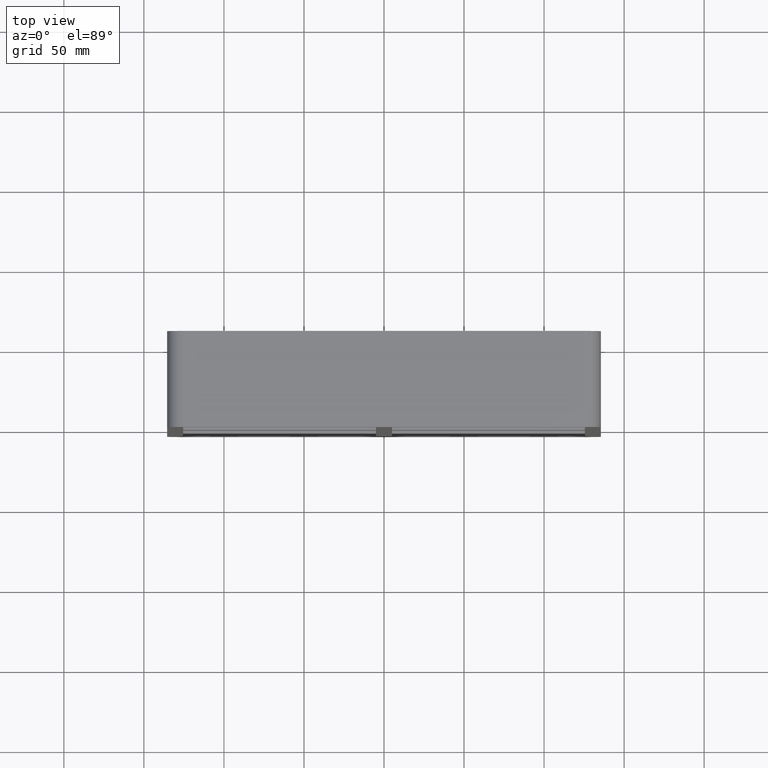
[diagram: clean part render]
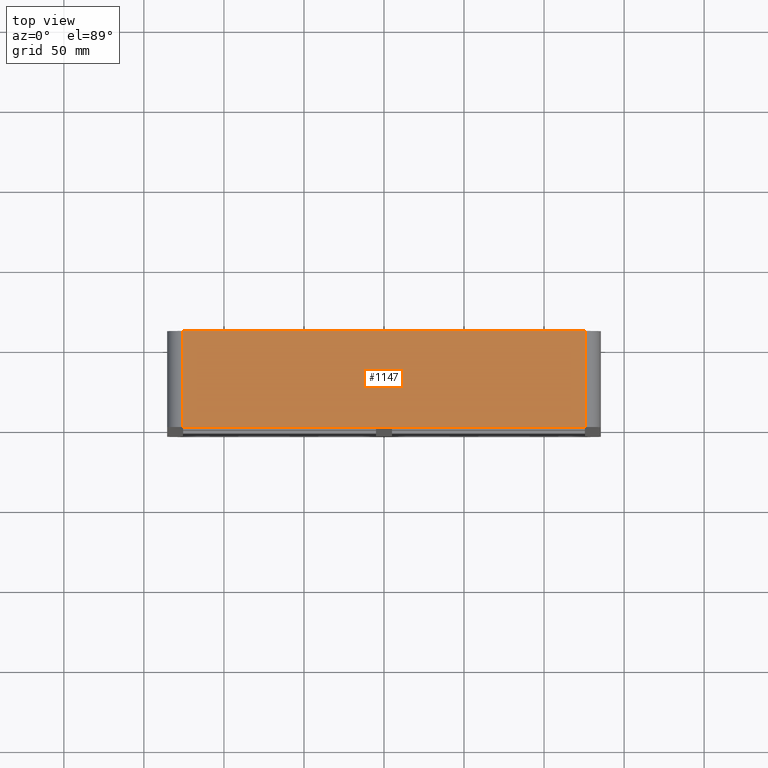
[diagram: same view with one face highlighted and labeled with its STEP entity id]
A machine part, top view. The second image highlights one B-rep face of the part: STEP entity #1147.
In plain terms, the highlighted planar face has unit normal (0, 0, 1).
Its self-contained STEP definition (entity closure, byte-faithful):
#650=CARTESIAN_POINT('',(-125.49999999999997,57.0,181.50000000000003));
#651=VERTEX_POINT('',#650);
#659=CARTESIAN_POINT('',(125.50000000000004,57.0,181.50000000000003));
#660=VERTEX_POINT('',#659);
#661=CARTESIAN_POINT('',(-125.49999999999997,57.0,181.50000000000003));
#662=DIRECTION('',(1.0,0.0,0.0));
#663=VECTOR('',#662,251.0);
#664=LINE('',#661,#663);
#665=EDGE_CURVE('',#651,#660,#664,.T.);
#953=CARTESIAN_POINT('',(125.50000000000004,-3.0,181.50000000000003));
#954=VERTEX_POINT('',#953);
#962=CARTESIAN_POINT('',(-125.49999999999997,-3.0,181.50000000000003));
#963=VERTEX_POINT('',#962);
#964=CARTESIAN_POINT('',(125.50000000000003,-3.0,181.50000000000003));
#965=DIRECTION('',(-1.0,0.0,0.0));
#966=VECTOR('',#965,251.0);
#967=LINE('',#964,#966);
#968=EDGE_CURVE('',#954,#963,#967,.T.);
#1071=CARTESIAN_POINT('',(125.50000000000004,57.0,181.50000000000003));
#1072=DIRECTION('',(0.0,-1.0,0.0));
#1073=VECTOR('',#1072,60.0);
#1074=LINE('',#1071,#1073);
#1075=EDGE_CURVE('',#660,#954,#1074,.T.);
#1127=CARTESIAN_POINT('',(-125.49999999999997,-3.0,181.50000000000003));
#1128=DIRECTION('',(0.0,1.0,0.0));
#1129=VECTOR('',#1128,60.0);
#1130=LINE('',#1127,#1129);
#1131=EDGE_CURVE('',#963,#651,#1130,.T.);
#1136=CARTESIAN_POINT('',(-135.49999999999997,0.0,181.50000000000003));
#1137=DIRECTION('',(0.0,0.0,1.0));
#1138=DIRECTION('',(1.0,0.0,0.0));
#1139=AXIS2_PLACEMENT_3D('',#1136,#1137,#1138);
#1140=PLANE('',#1139);
#1141=ORIENTED_EDGE('',*,*,#1075,.F.);
#1142=ORIENTED_EDGE('',*,*,#665,.F.);
#1143=ORIENTED_EDGE('',*,*,#1131,.F.);
#1144=ORIENTED_EDGE('',*,*,#968,.F.);
#1145=EDGE_LOOP('',(#1141,#1142,#1143,#1144));
#1146=FACE_OUTER_BOUND('',#1145,.T.);
#1147=ADVANCED_FACE('',(#1146),#1140,.T.);